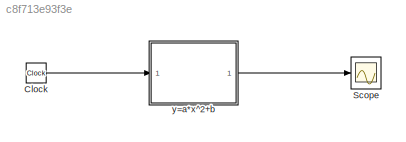
MODEL slx_c8f713e93f3e
KIND model
CONFIG AbsTol = auto
CONFIG FixedStep = auto
CONFIG MaxStep = auto
CONFIG MinStep = auto
CONFIG RelTol = 1e-3
CONFIG SampleTimeConstraint = Unconstrained
CONFIG Solver = VariableStepAuto
CONFIG SolverMode = Auto
CONFIG SolverName = VariableStepAuto
CONFIG StartFcn = open_scope
CONFIG StartTime = 0.0
CONFIG StopTime = 10
BLOCK [Clock] Clock
BLOCK [Scope] Scope
  Ports = [1]
  ScopeSpecificationString = Simulink.scopes.TimeScopeBlockCfg('CurrentConfiguration', extmgr.ConfigurationSet(extmgr.Configuration('Core','General UI',true),extmgr.Configuration('Core','Source UI',true),extmgr.Configuration('Sources','WiredSimulink',true),extmgr.Configuration('Visuals','Time Domain',true,'SerializedDisplays',{struct('MinYLimReal','-5.00000','MaxYLimReal','245.00000','YLabelReal','','MinYLimMag','0.00000','Ma...<+1337ch>
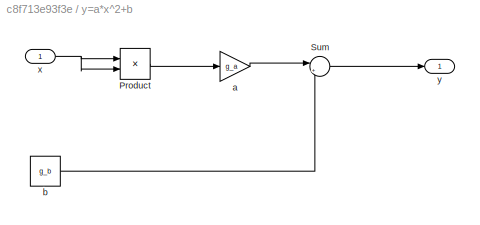
BLOCK [SubSystem] y=a*x^2+b
  Ports = [1, 1]
  RequestExecContextInheritance = off
  Variant = off
BLOCK [Product] y=a*x^2+b/Product
  InputSameDT = off
  OutDataTypeStr = Inherit: Inherit via internal rule
  Ports = [2, 1]
  RndMeth = Floor
  SaturateOnIntegerOverflow = off
BLOCK [Sum] y=a*x^2+b/Sum
  IconShape = round
  InputSameDT = off
  Inputs = |++
  OutDataTypeStr = Inherit: Inherit via internal rule
  Ports = [2, 1]
  SaturateOnIntegerOverflow = off
BLOCK [Gain] y=a*x^2+b/a
  Gain = g_a
  OutDataTypeStr = Inherit: Inherit via internal rule
  ParamDataTypeStr = Inherit: Inherit via internal rule
  SaturateOnIntegerOverflow = off
BLOCK [Constant] y=a*x^2+b/b
  Value = g_b
BLOCK [Inport] y=a*x^2+b/x
  Description = x
  IconDisplay = Port number
BLOCK [Outport] y=a*x^2+b/y
  IconDisplay = Port number
LINE Clock:1 -> y=a*x^2+b:1
LINE y=a*x^2+b/Product:1 -> y=a*x^2+b/a:1
LINE y=a*x^2+b/Sum:1 -> y=a*x^2+b/y:1
LINE y=a*x^2+b/a:1 -> y=a*x^2+b/Sum:1
LINE y=a*x^2+b/b:1 -> y=a*x^2+b/Sum:2
NET y=a*x^2+b/x:1 -> y=a*x^2+b/Product:1, y=a*x^2+b/Product:2
LINE y=a*x^2+b:1 -> Scope:1
note: NET lines group one-source signal fan-out (src -> all destinations, sorted); 1:1 wires keep LINE
